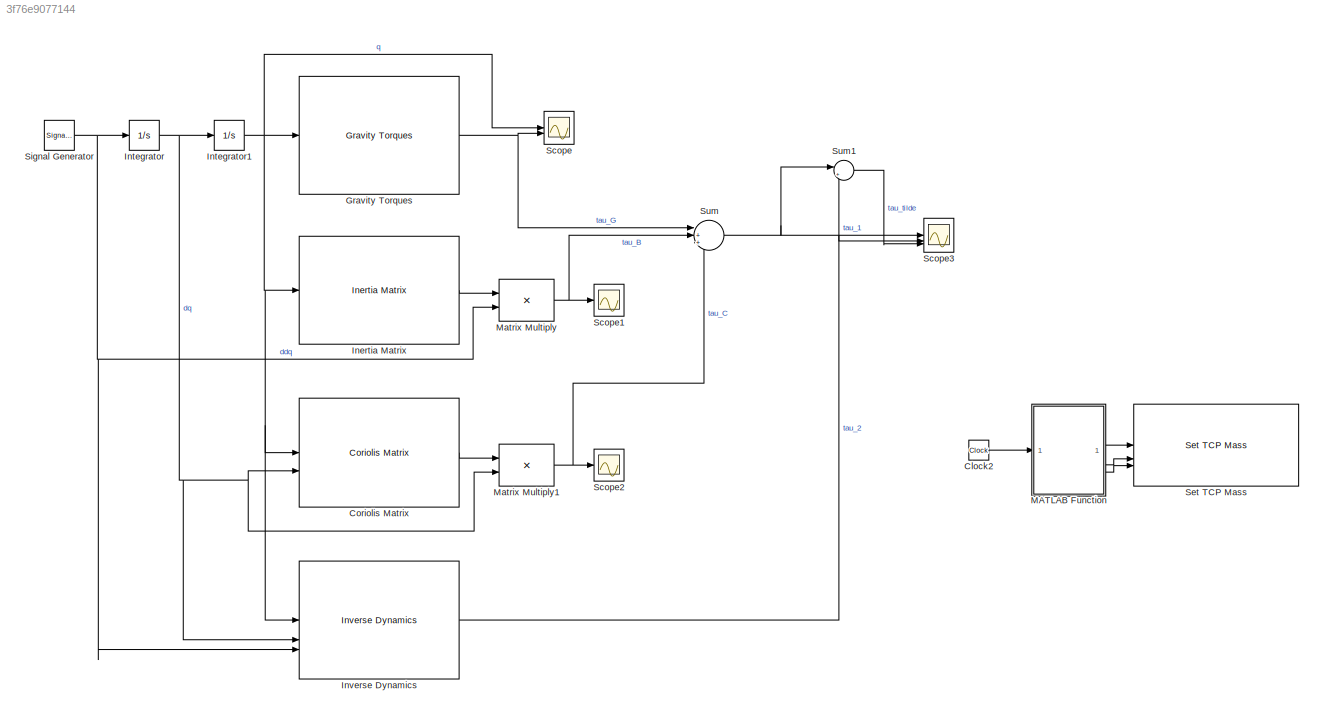
MODEL slx_3f76e9077144
KIND model
CONFIG AbsTol = auto
CONFIG EnableMultiTasking = off
CONFIG FixedStep = dt
CONFIG MaxStep = auto
CONFIG MinStep = auto
CONFIG RelTol = 1e-3
CONFIG SampleTimeConstraint = Unconstrained
CONFIG SolverName = ode1
CONFIG StartTime = 0.0
CONFIG StopTime = 20
WORKSPACE source: mxarray member
WORKSPACE dt = 0.001
BLOCK [Reference]  Inverse Dynamics  REF=sdu_controllers/Dynamics/Inverse Dynamics
  SourceBlock = sdu_controllers/Dynamics/Inverse Dynamics
  SourceProductName = SDU Controllers
  SourceType = inverse_dynamics
BLOCK [Clock] Clock2
  Commented = on
BLOCK [Reference] Coriolis Matrix  REF=sdu_controllers/Dynamics/Coriolis Matrix
  SourceBlock = sdu_controllers/Dynamics/Coriolis Matrix
  SourceProductName = SDU Controllers
  SourceType = coriolis_matrix
BLOCK [Reference] Gravity Torques  REF=sdu_controllers/Dynamics/Gravity Torques
  SourceBlock = sdu_controllers/Dynamics/Gravity Torques
  SourceProductName = SDU Controllers
  SourceType = gravity_torques
BLOCK [Reference] Inertia Matrix  REF=sdu_controllers/Dynamics/Inertia Matrix
  SourceBlock = sdu_controllers/Dynamics/Inertia Matrix
  SourceProductName = SDU Controllers
  SourceType = inertia_matrix
BLOCK [Integrator] Integrator
BLOCK [Integrator] Integrator1
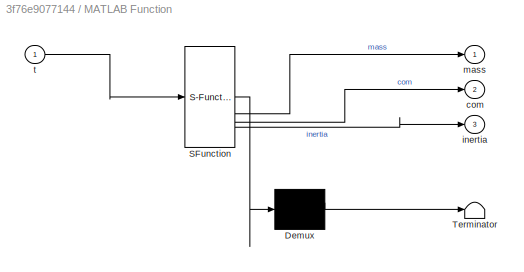
BLOCK [SubSystem] MATLAB Function
  Commented = on
  ErrorFcn = Stateflow.Translate.translate
  PermitHierarchicalResolution = ExplicitOnly
  SFBlockType = MATLAB Function
  TreatAsAtomicUnit = on
BLOCK [Demux] MATLAB Function/ Demux 
  Outputs = 1
BLOCK [S-Function] MATLAB Function/ SFunction 
  EnableBusSupport = off
  FunctionName = sf_sfun
  PortCounts = [1 4]
  SFcnIsStateOwnerBlock = off
  SFunctionDeploymentMode = off
  Tag = Stateflow S-Function 2
BLOCK [Terminator] MATLAB Function/ Terminator 
BLOCK [Outport] MATLAB Function/com
  Port = 2
BLOCK [Outport] MATLAB Function/inertia
  Port = 3
BLOCK [Outport] MATLAB Function/mass
BLOCK [Inport] MATLAB Function/t
BLOCK [Product] Matrix Multiply
  Multiplication = Matrix(*)
BLOCK [Product] Matrix Multiply1
  Multiplication = Matrix(*)
BLOCK [Scope] Scope
  ActiveDisplayYMaximum = 4.2834
  ActiveDisplayYMinimum = -0.47593
  Floating = off
  GraphicalSettings = {"GraphicalSettings":{"LegacySettings":true,"Style":{"Style":{"AxesColor":"[0 0 0]","ChannelNames":["",""],"ColorOrder":"[1 0.909803921568627 0.392156862745098;0.149019607843137 0.549019607843137 0.866666666666667;0.96078431372549 0.466666666666667 0.16078431372549;0.286274509803922 0.858823529411765 0.250980392156863;0.752941176470588 0.36078431372549 0.984313725490196;0.423529411764706 0.9568627...<+493ch>
  LayoutDimensionsString = [2 1]
  MultipleDisplayCache = [{"MaxYLimMag":4.2834,"MaxYLimReal":4.2834,"MinYLimMag":0,"MinYLimReal":-0.47593,"PlotAsMagnitudePhase":false,"ShowGrid":true,"ShowLegend":true,"Title":"%<SignalLabel>","YLabel":""},{"MaxYLimMag":71.21519,"MaxYLimReal":12.49828,"MinYLimMag":0,"MinYLimReal":-21.68716,"PlotAsMagnitudePhase":false,"ShowGrid":true,"ShowLegend":true,"Title":"%<SignalLabel>","YLabel":""}]
  NumInputPorts = 2
  ShowLegend = on
  WasSavedAsWebScope = on
  WindowPosition = [1281 -273 1280 1354]
BLOCK [Scope] Scope1
  ActiveDisplayYMaximum = 1.25732
  ActiveDisplayYMinimum = -1.24045
  DataLoggingVariableName = ScopeData1
  Floating = off
  GraphicalSettings = {"GraphicalSettings":{"LegacySettings":true,"Style":{"Style":{"AxesColor":"[0 0 0]","ChannelNames":[""],"ColorOrder":"[1 0.909803921568627 0.392156862745098;0.149019607843137 0.549019607843137 0.866666666666667;0.96078431372549 0.466666666666667 0.16078431372549;0.286274509803922 0.858823529411765 0.250980392156863;0.752941176470588 0.36078431372549 0.984313725490196;0.423529411764706 0.9568627450...<+447ch>
  MultipleDisplayCache = [{"MaxYLimMag":1.25732,"MaxYLimReal":1.25732,"MinYLimMag":0,"MinYLimReal":-1.24045,"PlotAsMagnitudePhase":false,"ShowGrid":true,"ShowLegend":true,"Title":"%<SignalLabel>","YLabel":""}]
  NumInputPorts = 1
  ScopeFrameLocation = window
  ShowLegend = on
  WasSavedAsWebScope = on
  WindowPosition = [1540.000000,789.000000,560.000000,420.000000,]
BLOCK [Scope] Scope2
  ActiveDisplayYMaximum = 0.25783
  ActiveDisplayYMinimum = -0.55947
  DataLoggingVariableName = ScopeData2
  Floating = off
  GraphicalSettings = {"GraphicalSettings":{"LegacySettings":true,"Style":{"Style":{"AxesColor":"[0 0 0]","ChannelNames":[""],"ColorOrder":"[1 0.909803921568627 0.392156862745098;0.149019607843137 0.549019607843137 0.866666666666667;0.96078431372549 0.466666666666667 0.16078431372549;0.286274509803922 0.858823529411765 0.250980392156863;0.752941176470588 0.36078431372549 0.984313725490196;0.423529411764706 0.9568627450...<+447ch>
  MultipleDisplayCache = [{"MaxYLimMag":0.55947,"MaxYLimReal":0.25783,"MinYLimMag":0,"MinYLimReal":-0.55947,"PlotAsMagnitudePhase":false,"ShowGrid":true,"ShowLegend":true,"Title":"%<SignalLabel>","YLabel":""}]
  NumInputPorts = 1
  ShowLegend = on
  WasSavedAsWebScope = on
BLOCK [Scope] Scope3
  ActiveDisplayYMaximum = 2.2835765255625
  ActiveDisplayYMinimum = -20.552188730062504
  DataLoggingVariableName = ScopeData3
  Floating = off
  GraphicalSettings = {"GraphicalSettings":{"LegacySettings":true,"Style":{"Style":{"AxesColor":"[0 0 0]","ChannelNames":["","",""],"ColorOrder":"[1 0.909803921568627 0.392156862745098;0.149019607843137 0.549019607843137 0.866666666666667;0.96078431372549 0.466666666666667 0.16078431372549;0.286274509803922 0.858823529411765 0.250980392156863;0.752941176470588 0.36078431372549 0.984313725490196;0.423529411764706 0.9568...<+907ch>
  LayoutDimensionsString = [3 1]
  MultipleDisplayCache = [{"MaxYLimMag":20.552188730062504,"MaxYLimReal":2.2835765255625,"MinYLimMag":0,"MinYLimReal":-20.552188730062504,"PlotAsMagnitudePhase":false,"ShowGrid":true,"ShowLegend":true,"Title":"%<SignalLabel>","YLabel":""},{"MaxYLimMag":20.552188730062504,"MaxYLimReal":2.2835765255625,"MinYLimMag":0,"MinYLimReal":-20.552188730062504,"PlotAsMagnitudePhase":false,"ShowGrid":true,"ShowLegend":true,"Title":"%<...<+192ch>
  NumInputPorts = 3
  ScopeFrameLocation = window
  ShowLegend = on
  Visible = on
  WasSavedAsWebScope = on
  WindowPosition = [2561.000000,-479.000000,1080.000000,1881.000000,]
BLOCK [Reference] Set TCP Mass  REF=sdu_controllers/Dynamics/Set TCP Mass
  Commented = on
  SourceBlock = sdu_controllers/Dynamics/Set TCP Mass
  SourceProductName = SDU Controllers
  SourceType = dynamics.set_tcp_mass
BLOCK [SignalGenerator] Signal Generator
  Amplitude = ones(6,1)
  Frequency = ones(6,1)+pi/2
  Units = rad/sec
BLOCK [Sum] Sum
  Inputs = |+++
BLOCK [Sum] Sum1
  Inputs = |+-
NET  Inverse Dynamics:1 -> Scope3:2, Sum1:2
LINE Clock2:1 -> MATLAB Function:1
LINE Coriolis Matrix:1 -> Matrix Multiply1:1
NET Gravity Torques:1 -> Scope:2, Sum:1
LINE Inertia Matrix:1 -> Matrix Multiply:1
NET Integrator1:1 ->  Inverse Dynamics:1, Coriolis Matrix:1, Gravity Torques:1, Inertia Matrix:1, Scope:1
NET Integrator:1 ->  Inverse Dynamics:2, Coriolis Matrix:2, Integrator1:1, Matrix Multiply1:2
LINE MATLAB Function:1 -> Set TCP Mass:1
LINE MATLAB Function:2 -> Set TCP Mass:2
LINE MATLAB Function:3 -> Set TCP Mass:3
NET Matrix Multiply1:1 -> Scope2:1, Sum:3
NET Matrix Multiply:1 -> Scope1:1, Sum:2
NET Signal Generator:1 ->  Inverse Dynamics:3, Integrator:1, Matrix Multiply:2
LINE Sum1:1 -> Scope3:3
NET Sum:1 -> Scope3:1, Sum1:1
note: NET lines group one-source signal fan-out (src -> all destinations, sorted); 1:1 wires keep LINE
CHART MATLAB Function states=1 transitions=1
  STATE_LABEL 'eML_blk_kernel()'
  STATE_LABEL 'SCRIPT:\nfunction [mass, com, inertia] = fcn(t)\n\nif t < 10\n    mass = 0;\n    com = [0 0 0];\n    inertia = zeros(3, 3);\nelse\n    mass = 1;\n    com = [0 0 0.2];\n    inertia = 1 * eye(3);\nend\n'
CHART  states=0 transitions=0
